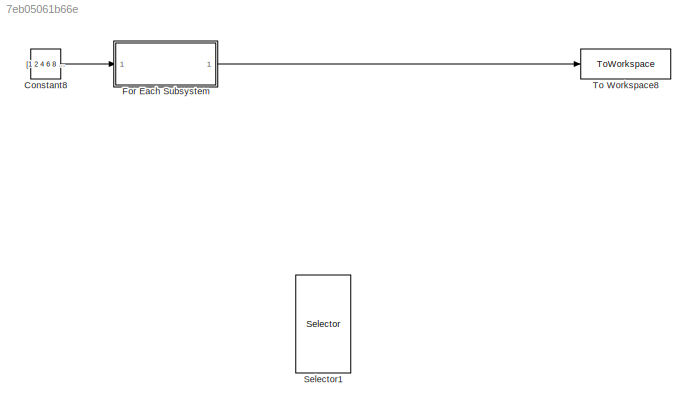
MODEL slx_7eb05061b66e
KIND model
CONFIG AbsTol = auto
CONFIG EnableMultiTasking = off
CONFIG FixedStep = auto
CONFIG MaxStep = auto
CONFIG MinStep = auto
CONFIG RelTol = 1e-3
CONFIG SampleTimeConstraint = Unconstrained
CONFIG SolverName = VariableStepAuto
CONFIG StartTime = 0.0
CONFIG StopTime = 55
BLOCK [Constant] Constant8
  Value = [1 2 4 6 8 10]*1000
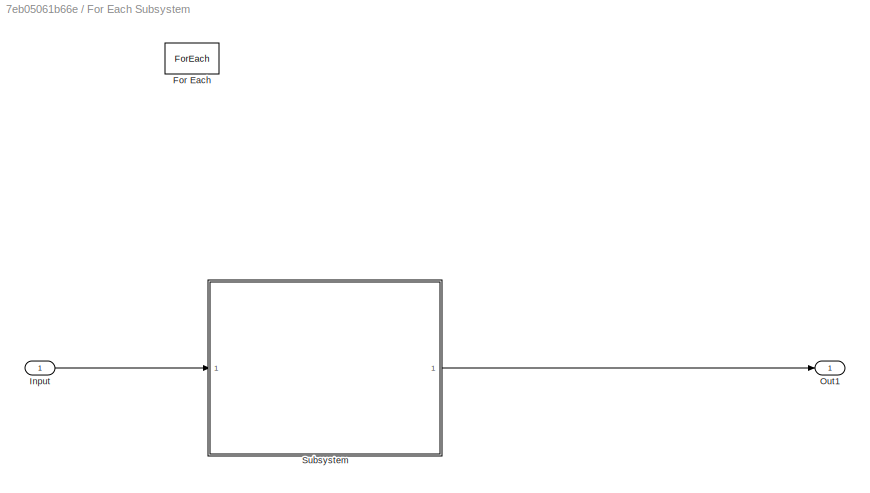
BLOCK [SubSystem] For Each Subsystem
  TreatAsAtomicUnit = on
BLOCK [ForEach] For Each Subsystem/For Each
  DisableCoverage = on
BLOCK [Inport] For Each Subsystem/Input
  Partition = on
  PartitionDimension = 2
  PartitionOffset = 0
  PartitionWidth = 1
BLOCK [Outport] For Each Subsystem/Out1
  ConcatenationDimension = 1
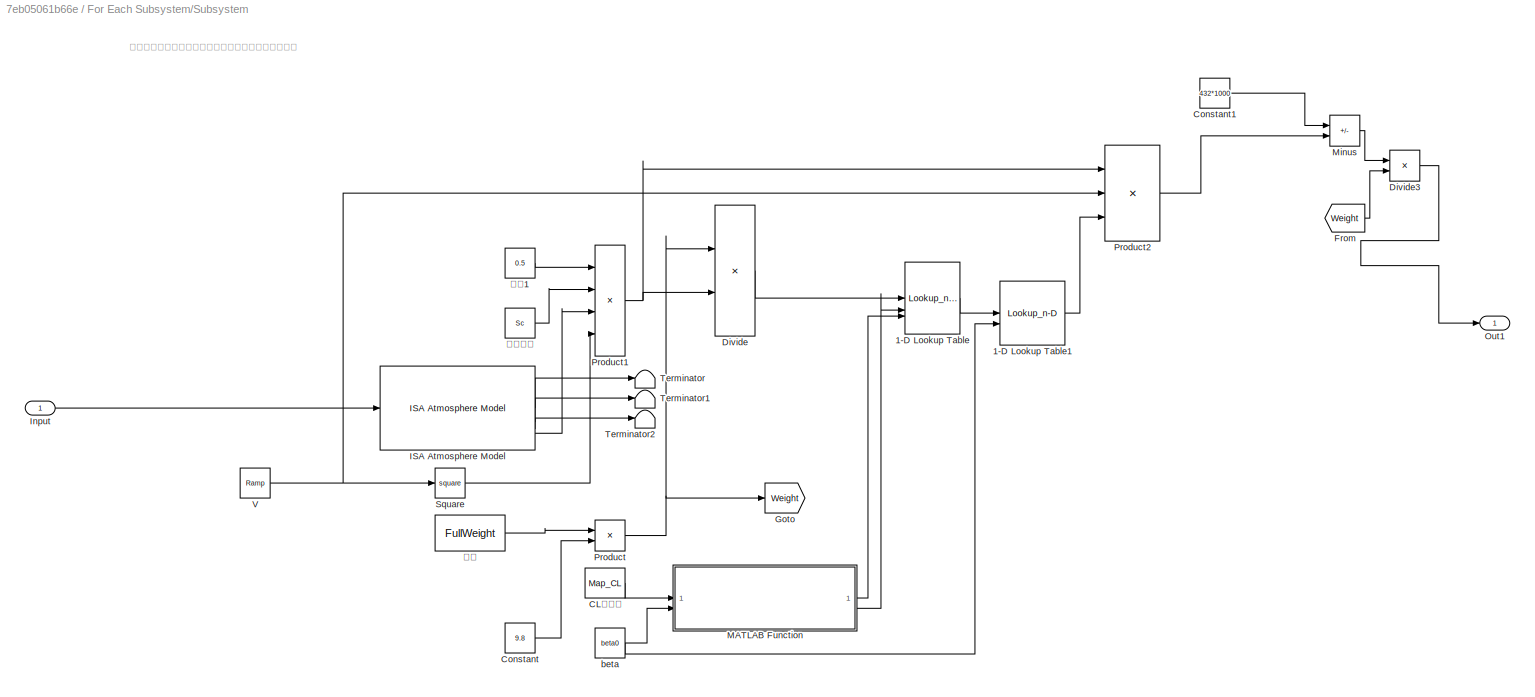
BLOCK [SubSystem] For Each Subsystem/Subsystem
BLOCK [Lookup_n-D] For Each Subsystem/Subsystem/1-D Lookup Table
  BreakpointsForDimension1 = [-5:5]
  BreakpointsForDimension1Source = Input port
  InputPortMap = u0,p221,p5
  InternalRulePriority = Speed
  NumberOfTableDimensions = 1
  RndMeth = Simplest
  Table = tanh([-5:5])
  TableSource = Input port
BLOCK [Lookup_n-D] For Each Subsystem/Subsystem/1-D Lookup Table1
  BreakpointsForDimension1 = [0 4 8]
  BreakpointsForDimension2 = [0 5 10 15 20 25]
  InputPortMap = u0,u1
  InternalRulePriority = Speed
  RndMeth = Simplest
  Table = Map_CD
BLOCK [Constant] For Each Subsystem/Subsystem/CL插值表
  Value = Map_CL
BLOCK [Constant] For Each Subsystem/Subsystem/Constant
  NameLocation = left
  Value = 9.8
BLOCK [Constant] For Each Subsystem/Subsystem/Constant1
  Value = 432*1000
BLOCK [Product] For Each Subsystem/Subsystem/Divide
  Inputs = */
BLOCK [Product] For Each Subsystem/Subsystem/Divide3
  Inputs = */
BLOCK [From] For Each Subsystem/Subsystem/From
  GotoTag = Weight
BLOCK [Goto] For Each Subsystem/Subsystem/Goto
  GotoTag = Weight
BLOCK [Reference] For Each Subsystem/Subsystem/ISA Atmosphere Model  REF=aerolibatmos2/ISA Atmosphere Model
  SourceBlock = aerolibatmos2/ISA Atmosphere Model
  SourceType = International Standard Atmosphere Model
BLOCK [Inport] For Each Subsystem/Subsystem/Input
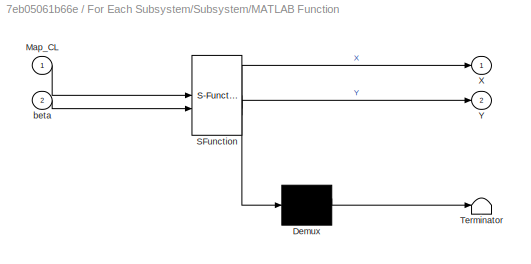
BLOCK [SubSystem] For Each Subsystem/Subsystem/MATLAB Function
  ErrorFcn = Stateflow.Translate.translate
  PermitHierarchicalResolution = ExplicitOnly
  SFBlockType = MATLAB Function
  TreatAsAtomicUnit = on
BLOCK [Demux] For Each Subsystem/Subsystem/MATLAB Function/ Demux 
  Outputs = 1
BLOCK [S-Function] For Each Subsystem/Subsystem/MATLAB Function/ SFunction 
  EnableBusSupport = on
  FunctionName = sf_sfun
  PortCounts = [2 3]
  SFcnIsStateOwnerBlock = off
  SFunctionDeploymentMode = off
  Tag = Stateflow S-Function 2
BLOCK [Terminator] For Each Subsystem/Subsystem/MATLAB Function/ Terminator 
BLOCK [Inport] For Each Subsystem/Subsystem/MATLAB Function/Map_CL
BLOCK [Outport] For Each Subsystem/Subsystem/MATLAB Function/X
BLOCK [Outport] For Each Subsystem/Subsystem/MATLAB Function/Y
  Port = 2
BLOCK [Inport] For Each Subsystem/Subsystem/MATLAB Function/beta
  Port = 2
BLOCK [Sum] For Each Subsystem/Subsystem/Minus
  IconShape = rectangular
  Inputs = +-
BLOCK [Outport] For Each Subsystem/Subsystem/Out1
BLOCK [Product] For Each Subsystem/Subsystem/Product
BLOCK [Product] For Each Subsystem/Subsystem/Product1
  Inputs = 4
BLOCK [Product] For Each Subsystem/Subsystem/Product2
  Inputs = 3
BLOCK [Math] For Each Subsystem/Subsystem/Square
  Operator = square
BLOCK [Terminator] For Each Subsystem/Subsystem/Terminator
BLOCK [Terminator] For Each Subsystem/Subsystem/Terminator1
BLOCK [Terminator] For Each Subsystem/Subsystem/Terminator2
BLOCK [Reference] For Each Subsystem/Subsystem/V  REF=simulink/Sources/Ramp
  SourceBlock = simulink/Sources/Ramp
  SourceType = Ramp
BLOCK [Constant] For Each Subsystem/Subsystem/beta
  Value = beta0
BLOCK [Constant] For Each Subsystem/Subsystem/参考面积
  Value = Sc
BLOCK [Constant] For Each Subsystem/Subsystem/质量
  Value = FullWeight
BLOCK [Constant] For Each Subsystem/Subsystem/速度1
  Value = 0.5
BLOCK [Selector] Selector1
  IndexOptions = Index vector (dialog)
  Indices = [1]
  InputPortWidth = 6
  OutputSizes = 1
BLOCK [ToWorkspace] To Workspace8
  FixptAsFi = on
  MaxDataPoints = inf
  SampleTime = -1
  SaveFormat = Timeseries
  VariableName = simout
ANNOTATION For Each Subsystem/Subsystem: 计算不同高度和侧滑角下需用功率，预估最大平飞速度
LINE Constant8:1 -> For Each Subsystem:1
LINE For Each Subsystem/Input:1 -> For Each Subsystem/Subsystem:1
LINE For Each Subsystem/Subsystem/1-D Lookup Table1:1 -> For Each Subsystem/Subsystem/Product2:3
LINE For Each Subsystem/Subsystem/1-D Lookup Table:1 -> For Each Subsystem/Subsystem/1-D Lookup Table1:1
LINE For Each Subsystem/Subsystem/CL插值表:1 -> For Each Subsystem/Subsystem/MATLAB Function:1
LINE For Each Subsystem/Subsystem/Constant1:1 -> For Each Subsystem/Subsystem/Minus:1
LINE For Each Subsystem/Subsystem/Constant:1 -> For Each Subsystem/Subsystem/Product:2
LINE For Each Subsystem/Subsystem/Divide3:1 -> For Each Subsystem/Subsystem/Out1:1
LINE For Each Subsystem/Subsystem/Divide:1 -> For Each Subsystem/Subsystem/1-D Lookup Table:1
LINE For Each Subsystem/Subsystem/From:1 -> For Each Subsystem/Subsystem/Divide3:2
LINE For Each Subsystem/Subsystem/ISA Atmosphere Model:1 -> For Each Subsystem/Subsystem/Terminator:1
LINE For Each Subsystem/Subsystem/ISA Atmosphere Model:2 -> For Each Subsystem/Subsystem/Terminator1:1
LINE For Each Subsystem/Subsystem/ISA Atmosphere Model:3 -> For Each Subsystem/Subsystem/Terminator2:1
LINE For Each Subsystem/Subsystem/ISA Atmosphere Model:4 -> For Each Subsystem/Subsystem/Product1:3
LINE For Each Subsystem/Subsystem/Input:1 -> For Each Subsystem/Subsystem/ISA Atmosphere Model:1
LINE For Each Subsystem/Subsystem/MATLAB Function:1 -> For Each Subsystem/Subsystem/1-D Lookup Table:3
LINE For Each Subsystem/Subsystem/MATLAB Function:2 -> For Each Subsystem/Subsystem/1-D Lookup Table:2
LINE For Each Subsystem/Subsystem/Minus:1 -> For Each Subsystem/Subsystem/Divide3:1
NET For Each Subsystem/Subsystem/Product1:1 -> For Each Subsystem/Subsystem/Divide:2, For Each Subsystem/Subsystem/Product2:1
LINE For Each Subsystem/Subsystem/Product2:1 -> For Each Subsystem/Subsystem/Minus:2
NET For Each Subsystem/Subsystem/Product:1 -> For Each Subsystem/Subsystem/Divide:1, For Each Subsystem/Subsystem/Goto:1
LINE For Each Subsystem/Subsystem/Square:1 -> For Each Subsystem/Subsystem/Product1:4
NET For Each Subsystem/Subsystem/V:1 -> For Each Subsystem/Subsystem/Product2:2, For Each Subsystem/Subsystem/Square:1
NET For Each Subsystem/Subsystem/beta:1 -> For Each Subsystem/Subsystem/1-D Lookup Table1:2, For Each Subsystem/Subsystem/MATLAB Function:2
LINE For Each Subsystem/Subsystem/参考面积:1 -> For Each Subsystem/Subsystem/Product1:2
LINE For Each Subsystem/Subsystem/质量:1 -> For Each Subsystem/Subsystem/Product:1
LINE For Each Subsystem/Subsystem/速度1:1 -> For Each Subsystem/Subsystem/Product1:1
LINE For Each Subsystem/Subsystem:1 -> For Each Subsystem/Out1:1
LINE For Each Subsystem:1 -> To Workspace8:1
note: NET lines group one-source signal fan-out (src -> all destinations, sorted); 1:1 wires keep LINE
CHART For Each
Subsystem/Subsystem/MATLAB Function states=1 transitions=1
  STATE_LABEL 'eML_blk_kernel()'
  STATE_LABEL "SCRIPT:\n\nfunction [X,Y]=InvMatrix(Map_CL,beta)\nX=Map_CL(1:3,beta)';\nY=[0 4 8];\n\n\n"
CHART  states=0 transitions=0
